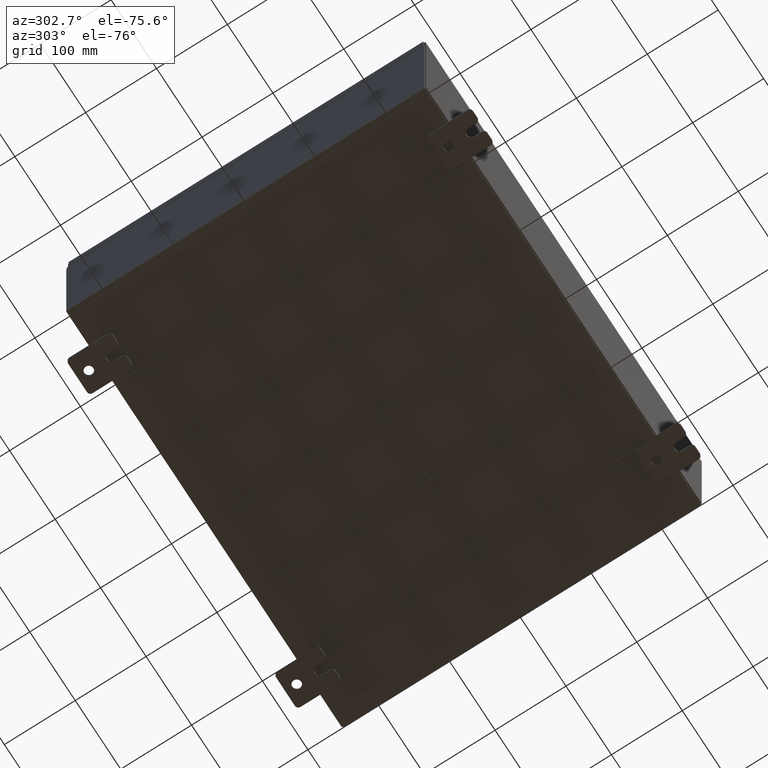
[diagram: clean part render]
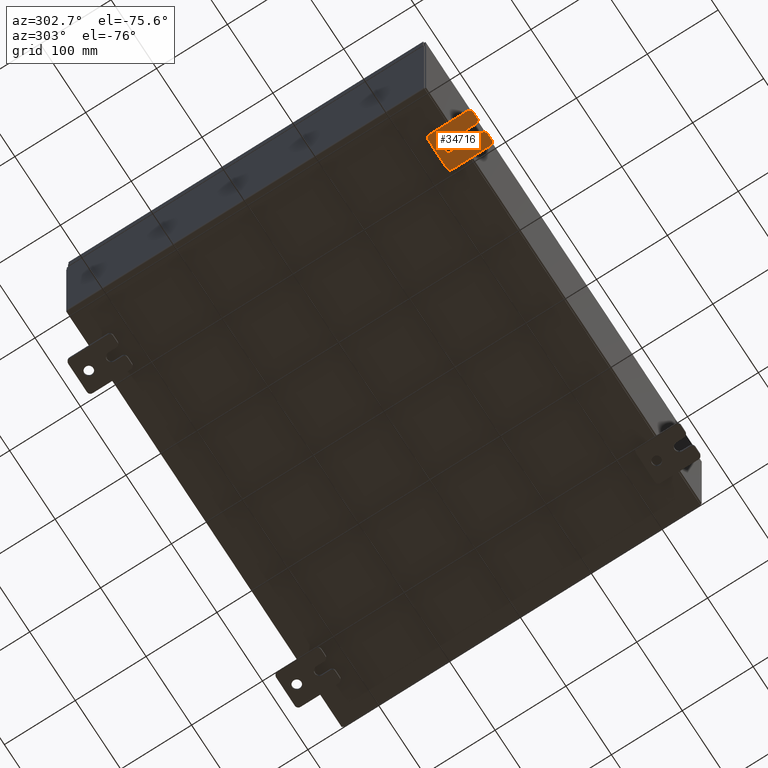
[diagram: same view with one face highlighted and labeled with its STEP entity id]
A machine part, auxiliary view. The second image highlights one B-rep face of the part: STEP entity #34716.
In plain terms, the highlighted planar face has unit normal (0, 0, 1).
Its self-contained STEP definition (entity closure, byte-faithful):
#125 = CIRCLE ( 'NONE', #4469, 0.1900000000000011100 ) ;
#141 = CARTESIAN_POINT ( 'NONE',  ( -0.1879999999999997800, 1.249999999999997600, 0.9999999999999951200 ) ) ;
#1123 = DIRECTION ( 'NONE',  ( 0.0000000000000000000, 0.0000000000000000000, -1.000000000000000000 ) ) ;
#2168 = CARTESIAN_POINT ( 'NONE',  ( -0.1879999999999997800, 1.059999999999996300, 0.8099999999999938400 ) ) ;
#2627 = VECTOR ( 'NONE', #32048, 39.37007874015748100 ) ;
#2781 = VERTEX_POINT ( 'NONE', #62608 ) ;
#3615 = CARTESIAN_POINT ( 'NONE',  ( -0.1880000000000001900, -0.6249999999999992200, -0.2499999999999998600 ) ) ;
#3641 = CARTESIAN_POINT ( 'NONE',  ( -0.1879999999999997800, -1.250000000000005600, -1.000000000000006200 ) ) ;
#4025 = CIRCLE ( 'NONE', #12657, 0.2499999999999999200 ) ;
#4356 = VERTEX_POINT ( 'NONE', #61448 ) ;
#4469 = AXIS2_PLACEMENT_3D ( 'NONE', #16701, #50937, #21618 ) ;
#5125 = LINE ( 'NONE', #14401, #41153 ) ;
#5332 = CARTESIAN_POINT ( 'NONE',  ( -0.1879999999999997800, -1.250000000000002200, 0.9999999999999992200 ) ) ;
#5730 = EDGE_CURVE ( 'NONE', #45534, #50013, #62091, .T. ) ;
#6492 = EDGE_CURVE ( 'NONE', #22700, #57427, #58774, .T. ) ;
#6615 = ORIENTED_EDGE ( 'NONE', *, *, #32484, .F. ) ;
#6945 = AXIS2_PLACEMENT_3D ( 'NONE', #44264, #14922, #49180 ) ;
#7152 = DIRECTION ( 'NONE',  ( 0.0000000000000000000, 0.0000000000000000000, -1.000000000000000000 ) ) ;
#7605 = VERTEX_POINT ( 'NONE', #18990 ) ;
#8209 = VECTOR ( 'NONE', #21974, 39.37007874015748100 ) ;
#8423 = CIRCLE ( 'NONE', #25437, 0.2499999999999999200 ) ;
#10863 = VERTEX_POINT ( 'NONE', #60026 ) ;
#11523 = VECTOR ( 'NONE', #45483, 39.37007874015748100 ) ;
#11636 = DIRECTION ( 'NONE',  ( -1.000000000000000000, -0.0000000000000000000, 0.0000000000000000000 ) ) ;
#11966 = VERTEX_POINT ( 'NONE', #22088 ) ;
#12646 = ORIENTED_EDGE ( 'NONE', *, *, #6492, .F. ) ;
#12657 = AXIS2_PLACEMENT_3D ( 'NONE', #56935, #27624, #61882 ) ;
#13855 = DIRECTION ( 'NONE',  ( -1.000000000000000000, -0.0000000000000000000, 0.0000000000000000000 ) ) ;
#14178 = FACE_BOUND ( 'NONE', #42741, .T. ) ;
#14401 = CARTESIAN_POINT ( 'NONE',  ( -0.1880000000000005800, -1.250000000000003800, 0.2500000000000005000 ) ) ;
#14422 = EDGE_CURVE ( 'NONE', #22700, #50013, #56741, .T. ) ;
#14496 = CARTESIAN_POINT ( 'NONE',  ( -0.1879999999999997800, -1.250000000000004700, -0.4400000000000002200 ) ) ;
#14922 = DIRECTION ( 'NONE',  ( -1.000000000000000000, -0.0000000000000000000, 0.0000000000000000000 ) ) ;
#14938 = ORIENTED_EDGE ( 'NONE', *, *, #59478, .T. ) ;
#15931 = DIRECTION ( 'NONE',  ( -0.0000000000000000000, 0.0000000000000000000, -1.000000000000000000 ) ) ;
#16701 = CARTESIAN_POINT ( 'NONE',  ( -0.1879999999999997800, -1.060000000000003400, -0.4400000000000005000 ) ) ;
#17621 = AXIS2_PLACEMENT_3D ( 'NONE', #59839, #30517, #1123 ) ;
#18184 = ORIENTED_EDGE ( 'NONE', *, *, #54349, .F. ) ;
#18990 = CARTESIAN_POINT ( 'NONE',  ( -0.1879999999999997800, -1.250000000000002400, 0.8099999999999980500 ) ) ;
#19681 = AXIS2_PLACEMENT_3D ( 'NONE', #43185, #13855, #48099 ) ;
#21618 = DIRECTION ( 'NONE',  ( 0.0000000000000000000, 0.0000000000000000000, -1.000000000000000000 ) ) ;
#21687 = VERTEX_POINT ( 'NONE', #29049 ) ;
#21819 = CARTESIAN_POINT ( 'NONE',  ( -0.1879999999999997800, 1.059999999999993600, -0.8100000000000089400 ) ) ;
#21974 = DIRECTION ( 'NONE',  ( 0.0000000000000000000, 1.000000000000000000, -1.639108796198558100E-015 ) ) ;
#22088 = CARTESIAN_POINT ( 'NONE',  ( -0.1880000000000004700, -1.060000000000003400, -0.2499999999999994400 ) ) ;
#22700 = VERTEX_POINT ( 'NONE', #29604 ) ;
#23287 = DIRECTION ( 'NONE',  ( 1.000000000000000000, -0.0000000000000000000, -5.163192708025532000E-017 ) ) ;
#23969 = ORIENTED_EDGE ( 'NONE', *, *, #35815, .F. ) ;
#25055 = AXIS2_PLACEMENT_3D ( 'NONE', #21819, #56036, #26749 ) ;
#25437 = AXIS2_PLACEMENT_3D ( 'NONE', #52575, #23287, #57481 ) ;
#25579 = CARTESIAN_POINT ( 'NONE',  ( -0.1879999999999997800, 0.0000000000000000000, 0.0000000000000000000 ) ) ;
#26081 = EDGE_CURVE ( 'NONE', #10863, #41859, #56707, .T. ) ;
#26749 = DIRECTION ( 'NONE',  ( 0.0000000000000000000, 0.0000000000000000000, -1.000000000000000000 ) ) ;
#26778 = EDGE_CURVE ( 'NONE', #52372, #36218, #28361, .T. ) ;
#27072 = VECTOR ( 'NONE', #28029, 39.37007874015748100 ) ;
#27624 = DIRECTION ( 'NONE',  ( -1.000000000000000000, 6.523827964459549700E-016, 5.163192708025532000E-017 ) ) ;
#28029 = DIRECTION ( 'NONE',  ( 0.0000000000000000000, 1.639108796198553600E-015, 1.000000000000000000 ) ) ;
#28091 = CARTESIAN_POINT ( 'NONE',  ( -0.1879999999999997800, 1.059999999999993400, -1.000000000000010000 ) ) ;
#28361 = CIRCLE ( 'NONE', #17621, 0.2499999999999999200 ) ;
#29049 = CARTESIAN_POINT ( 'NONE',  ( -0.1879999999999997800, -1.060000000000001200, 0.9999999999999988900 ) ) ;
#29551 = DIRECTION ( 'NONE',  ( 0.0000000000000000000, -1.000000000000000000, 1.639108796198558100E-015 ) ) ;
#29604 = CARTESIAN_POINT ( 'NONE',  ( -0.1879999999999997800, -1.060000000000004500, -1.000000000000006400 ) ) ;
#30085 = ORIENTED_EDGE ( 'NONE', *, *, #26778, .T. ) ;
#30517 = DIRECTION ( 'NONE',  ( 1.000000000000000000, -0.0000000000000000000, -5.163192708025532000E-017 ) ) ;
#32048 = DIRECTION ( 'NONE',  ( -6.556435184794182400E-016, -1.000000000000000000, -1.639108796198545600E-016 ) ) ;
#32484 = EDGE_CURVE ( 'NONE', #10863, #52887, #5125, .T. ) ;
#32564 = VECTOR ( 'NONE', #34671, 39.37007874015748100 ) ;
#34282 = AXIS2_PLACEMENT_3D ( 'NONE', #25579, #45221, #15931 ) ;
#34671 = DIRECTION ( 'NONE',  ( 0.0000000000000000000, -1.639108796198553600E-015, -1.000000000000000000 ) ) ;
#34716 = ADVANCED_FACE ( 'NONE', ( #14178, #44845 ), #40342, .F. ) ;
#35815 = EDGE_CURVE ( 'NONE', #54452, #11966, #40207, .T. ) ;
#36218 = VERTEX_POINT ( 'NONE', #44200 ) ;
#36338 = CIRCLE ( 'NONE', #47915, 0.1900000000000011100 ) ;
#36473 = EDGE_CURVE ( 'NONE', #7605, #21687, #36338, .T. ) ;
#36490 = DIRECTION ( 'NONE',  ( -1.000000000000000000, -0.0000000000000000000, 0.0000000000000000000 ) ) ;
#37668 = EDGE_CURVE ( 'NONE', #40787, #2781, #53087, .T. ) ;
#38254 = EDGE_CURVE ( 'NONE', #45534, #11966, #125, .T. ) ;
#38387 = ORIENTED_EDGE ( 'NONE', *, *, #59931, .T. ) ;
#38700 = CARTESIAN_POINT ( 'NONE',  ( -0.1879999999999997800, -1.250000000000003100, 0.4400000000000020000 ) ) ;
#39770 = ORIENTED_EDGE ( 'NONE', *, *, #41128, .F. ) ;
#40207 = LINE ( 'NONE', #51543, #2627 ) ;
#40342 = PLANE ( 'NONE',  #34282 ) ;
#40354 = ORIENTED_EDGE ( 'NONE', *, *, #26081, .T. ) ;
#40787 = VERTEX_POINT ( 'NONE', #58302 ) ;
#40985 = CARTESIAN_POINT ( 'NONE',  ( -0.1879999999999997800, -1.060000000000001600, 0.8099999999999978300 ) ) ;
#41128 = EDGE_CURVE ( 'NONE', #7605, #41859, #47113, .T. ) ;
#41153 = VECTOR ( 'NONE', #43954, 39.37007874015748100 ) ;
#41859 = VERTEX_POINT ( 'NONE', #38700 ) ;
#42150 = CARTESIAN_POINT ( 'NONE',  ( -0.1880000000000001900, -0.6249999999999992200, 0.2500000000000005000 ) ) ;
#42741 = EDGE_LOOP ( 'NONE', ( #14938, #30085 ) ) ;
#42782 = CARTESIAN_POINT ( 'NONE',  ( -0.1879999999999997800, -1.250000000000005300, -0.8100000000000047200 ) ) ;
#42830 = VECTOR ( 'NONE', #29551, 39.37007874015748100 ) ;
#43185 = CARTESIAN_POINT ( 'NONE',  ( -0.1879999999999997800, -1.060000000000004100, -0.8100000000000050500 ) ) ;
#43860 = AXIS2_PLACEMENT_3D ( 'NONE', #2168, #36490, #7152 ) ;
#43954 = DIRECTION ( 'NONE',  ( 6.556435184794182400E-016, 1.000000000000000000, 0.0000000000000000000 ) ) ;
#44200 = CARTESIAN_POINT ( 'NONE',  ( -0.1880000000000010000, 0.6249999999999992200, -0.2499999999999999200 ) ) ;
#44264 = CARTESIAN_POINT ( 'NONE',  ( -0.1879999999999997800, -1.060000000000002100, 0.4400000000000016700 ) ) ;
#44413 = EDGE_LOOP ( 'NONE', ( #39770, #47145, #61696, #38387, #56318, #56270, #12646, #58844, #63617, #46044, #23969, #18184, #6615, #40354 ) ) ;
#44845 = FACE_OUTER_BOUND ( 'NONE', #44413, .T. ) ;
#45221 = DIRECTION ( 'NONE',  ( 1.000000000000000000, 0.0000000000000000000, -0.0000000000000000000 ) ) ;
#45483 = DIRECTION ( 'NONE',  ( 0.0000000000000000000, -1.639108796198553600E-015, -1.000000000000000000 ) ) ;
#45534 = VERTEX_POINT ( 'NONE', #14496 ) ;
#45879 = DIRECTION ( 'NONE',  ( 0.0000000000000000000, 7.189073667537492800E-016, -1.000000000000000000 ) ) ;
#46044 = ORIENTED_EDGE ( 'NONE', *, *, #38254, .T. ) ;
#47113 = LINE ( 'NONE', #5332, #32564 ) ;
#47145 = ORIENTED_EDGE ( 'NONE', *, *, #36473, .T. ) ;
#47915 = AXIS2_PLACEMENT_3D ( 'NONE', #40985, #11636, #45879 ) ;
#48099 = DIRECTION ( 'NONE',  ( 0.0000000000000000000, 0.0000000000000000000, -1.000000000000000000 ) ) ;
#48811 = CARTESIAN_POINT ( 'NONE',  ( -0.1880000000000010000, 0.6249999999999992200, 0.2499999999999999200 ) ) ;
#49180 = DIRECTION ( 'NONE',  ( 0.0000000000000000000, 0.0000000000000000000, -1.000000000000000000 ) ) ;
#50013 = VERTEX_POINT ( 'NONE', #42782 ) ;
#50937 = DIRECTION ( 'NONE',  ( -1.000000000000000000, -0.0000000000000000000, 0.0000000000000000000 ) ) ;
#51543 = CARTESIAN_POINT ( 'NONE',  ( -0.1880000000000001900, -0.6249999999999992200, -0.2499999999999993900 ) ) ;
#52372 = VERTEX_POINT ( 'NONE', #48811 ) ;
#52575 = CARTESIAN_POINT ( 'NONE',  ( -0.1880000000000010000, 0.6249999999999992200, -7.703811342100550500E-020 ) ) ;
#52887 = VERTEX_POINT ( 'NONE', #42150 ) ;
#53087 = LINE ( 'NONE', #62271, #27072 ) ;
#54349 = EDGE_CURVE ( 'NONE', #52887, #54452, #4025, .T. ) ;
#54452 = VERTEX_POINT ( 'NONE', #3615 ) ;
#55844 = LINE ( 'NONE', #141, #42830 ) ;
#56036 = DIRECTION ( 'NONE',  ( -1.000000000000000000, -0.0000000000000000000, 0.0000000000000000000 ) ) ;
#56270 = ORIENTED_EDGE ( 'NONE', *, *, #56500, .T. ) ;
#56318 = ORIENTED_EDGE ( 'NONE', *, *, #37668, .F. ) ;
#56500 = EDGE_CURVE ( 'NONE', #40787, #57427, #62919, .T. ) ;
#56707 = CIRCLE ( 'NONE', #6945, 0.1900000000000011400 ) ;
#56741 = CIRCLE ( 'NONE', #19681, 0.1900000000000011100 ) ;
#56935 = CARTESIAN_POINT ( 'NONE',  ( -0.1880000000000001900, -0.6249999999999992200, 6.829619984160658000E-017 ) ) ;
#57427 = VERTEX_POINT ( 'NONE', #28091 ) ;
#57481 = DIRECTION ( 'NONE',  ( 0.0000000000000000000, 0.0000000000000000000, -1.000000000000000000 ) ) ;
#58302 = CARTESIAN_POINT ( 'NONE',  ( -0.1879999999999997800, 1.249999999999994700, -0.8100000000000092700 ) ) ;
#58774 = LINE ( 'NONE', #3641, #8209 ) ;
#58844 = ORIENTED_EDGE ( 'NONE', *, *, #14422, .T. ) ;
#59478 = EDGE_CURVE ( 'NONE', #36218, #52372, #8423, .T. ) ;
#59839 = CARTESIAN_POINT ( 'NONE',  ( -0.1880000000000010000, 0.6249999999999992200, -7.703811342100550500E-020 ) ) ;
#59931 = EDGE_CURVE ( 'NONE', #4356, #2781, #61265, .T. ) ;
#60026 = CARTESIAN_POINT ( 'NONE',  ( -0.1880000000000004700, -1.060000000000002100, 0.2500000000000005000 ) ) ;
#60499 = EDGE_CURVE ( 'NONE', #4356, #21687, #55844, .T. ) ;
#61265 = CIRCLE ( 'NONE', #43860, 0.1900000000000011100 ) ;
#61448 = CARTESIAN_POINT ( 'NONE',  ( -0.1879999999999997800, 1.059999999999996500, 0.9999999999999953400 ) ) ;
#61696 = ORIENTED_EDGE ( 'NONE', *, *, #60499, .F. ) ;
#61707 = CARTESIAN_POINT ( 'NONE',  ( -0.1879999999999997800, -1.250000000000002200, 0.9999999999999992200 ) ) ;
#61882 = DIRECTION ( 'NONE',  ( -6.829619984160660000E-016, -1.000000000000000000, 0.0000000000000000000 ) ) ;
#62091 = LINE ( 'NONE', #61707, #11523 ) ;
#62271 = CARTESIAN_POINT ( 'NONE',  ( -0.1879999999999997800, 1.249999999999994200, -1.000000000000010400 ) ) ;
#62608 = CARTESIAN_POINT ( 'NONE',  ( -0.1879999999999997800, 1.249999999999997300, 0.8099999999999935000 ) ) ;
#62919 = CIRCLE ( 'NONE', #25055, 0.1900000000000011100 ) ;
#63617 = ORIENTED_EDGE ( 'NONE', *, *, #5730, .F. ) ;